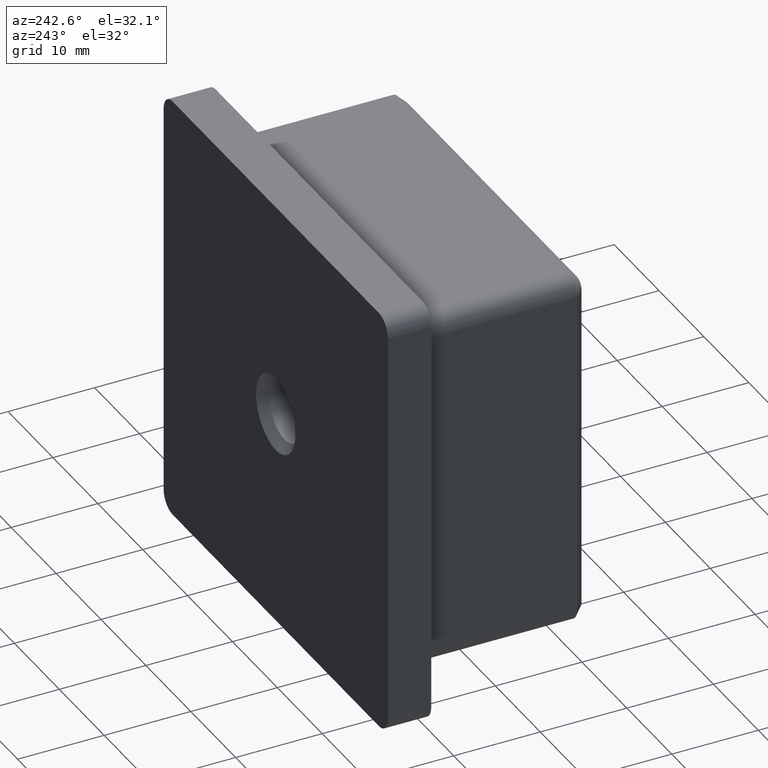
[diagram: clean part render]
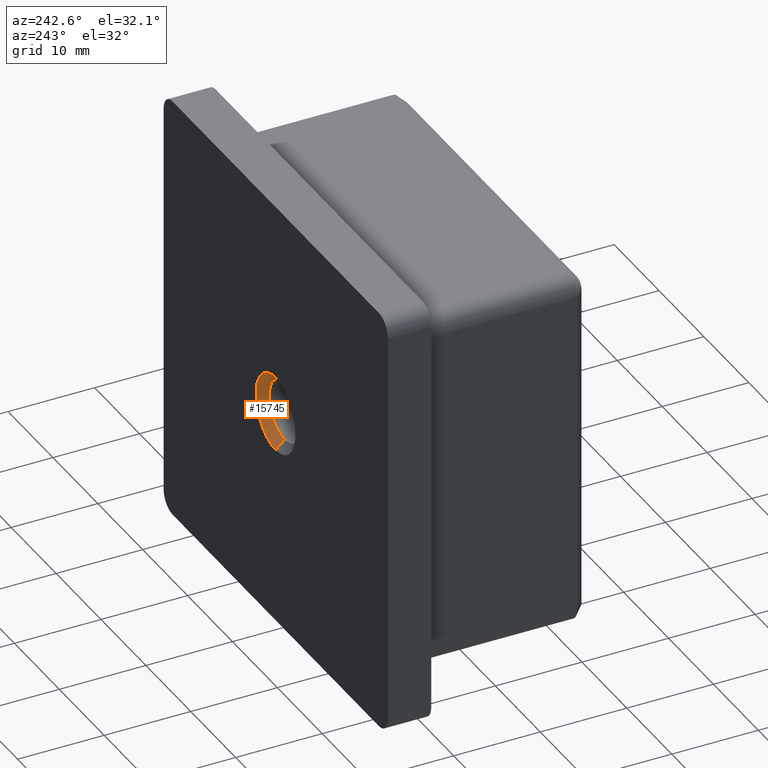
[diagram: same view with one face highlighted and labeled with its STEP entity id]
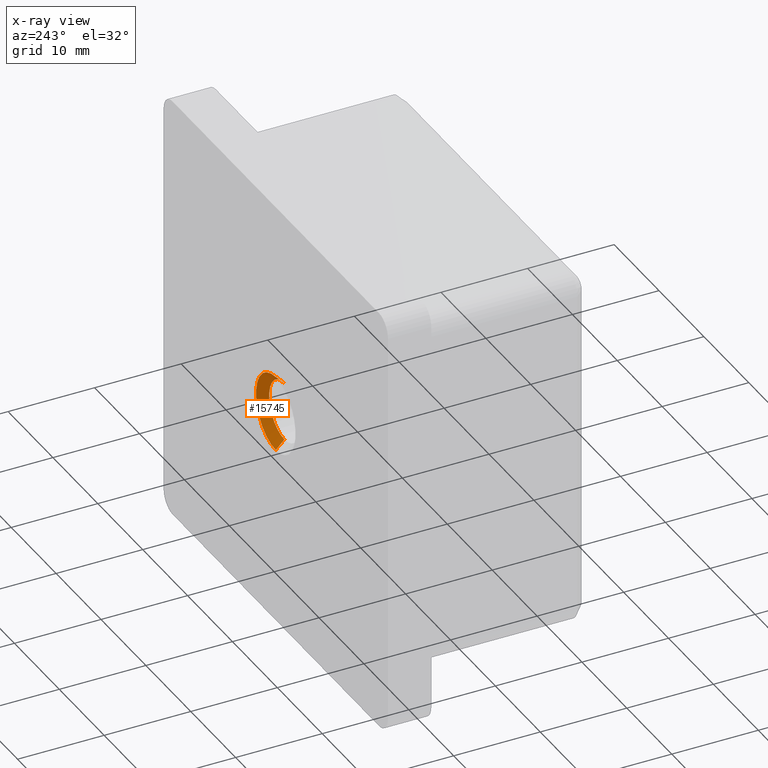
[diagram: x-ray of the same camera — body ghosted, the highlighted face saturated]
A machine part, auxiliary view. The second image highlights one B-rep face of the part: STEP entity #15745.
The next image is the same camera in x-ray: the body ghosted, the highlighted face saturated — about 0% of this face is hidden behind the body in this view.
In plain terms, the highlighted conical surface has half-angle 45 deg.
Its self-contained STEP definition (entity closure, byte-faithful):
#148 = FACE_OUTER_BOUND ( 'NONE', #13472, .T. ) ;
#737 = CARTESIAN_POINT ( 'NONE',  ( 2.449293598294707400E-016, 5.000000000000000000, 4.399999999999979000 ) ) ;
#738 = DIRECTION ( 'NONE',  ( 0.0000000000000000000, 0.0000000000000000000, 1.000000000000000000 ) ) ;
#782 = LINE ( 'NONE', #17958, #7932 ) ;
#880 = DIRECTION ( 'NONE',  ( 0.0000000000000000000, 0.7071067811865480200, 0.7071067811865470200 ) ) ;
#1010 = CARTESIAN_POINT ( 'NONE',  ( 6.613092715395703500E-016, 4.000000000000016000, 3.399999999999996400 ) ) ;
#2181 = CARTESIAN_POINT ( 'NONE',  ( 2.449293598294707400E-016, 4.000000000000016000, 0.0000000000000000000 ) ) ;
#2675 = VERTEX_POINT ( 'NONE', #18406 ) ;
#3680 = AXIS2_PLACEMENT_3D ( 'NONE', #4986, #17821, #738 ) ;
#4113 = AXIS2_PLACEMENT_3D ( 'NONE', #9190, #10614, #7715 ) ;
#4567 = VERTEX_POINT ( 'NONE', #1010 ) ;
#4921 = VERTEX_POINT ( 'NONE', #737 ) ;
#4986 = CARTESIAN_POINT ( 'NONE',  ( 2.449293598294707400E-016, 5.000000000000000900, 0.0000000000000000000 ) ) ;
#5099 = DIRECTION ( 'NONE',  ( -0.0000000000000000000, 1.000000000000000000, -0.0000000000000000000 ) ) ;
#5156 = AXIS2_PLACEMENT_3D ( 'NONE', #2181, #5099, #12116 ) ;
#5361 = CIRCLE ( 'NONE', #4113, 4.399999999999979000 ) ;
#5735 = CARTESIAN_POINT ( 'NONE',  ( 7.837739514543038200E-016, 5.000000000000000900, -4.399999999999979900 ) ) ;
#5815 = EDGE_CURVE ( 'NONE', #2675, #15014, #8465, .T. ) ;
#7715 = DIRECTION ( 'NONE',  ( 0.0000000000000000000, 0.0000000000000000000, 1.000000000000000000 ) ) ;
#7932 = VECTOR ( 'NONE', #880, 1000.000000000000000 ) ;
#8017 = VECTOR ( 'NONE', #12991, 1000.000000000000000 ) ;
#8465 = LINE ( 'NONE', #5735, #8017 ) ;
#8501 = ORIENTED_EDGE ( 'NONE', *, *, #9043, .F. ) ;
#8802 = CONICAL_SURFACE ( 'NONE', #3680, 4.399999999999979900, 0.7853981633974476100 ) ;
#8900 = CARTESIAN_POINT ( 'NONE',  ( 7.837739514543038200E-016, 5.000000000000000000, -4.399999999999979000 ) ) ;
#9043 = EDGE_CURVE ( 'NONE', #4567, #2675, #15207, .T. ) ;
#9190 = CARTESIAN_POINT ( 'NONE',  ( 2.449293598294707400E-016, 5.000000000000000000, 0.0000000000000000000 ) ) ;
#9718 = ORIENTED_EDGE ( 'NONE', *, *, #17223, .T. ) ;
#10176 = EDGE_CURVE ( 'NONE', #15014, #4921, #5361, .T. ) ;
#10614 = DIRECTION ( 'NONE',  ( -0.0000000000000000000, -1.000000000000000000, -0.0000000000000000000 ) ) ;
#12116 = DIRECTION ( 'NONE',  ( 0.0000000000000000000, 0.0000000000000000000, 1.000000000000000000 ) ) ;
#12248 = ORIENTED_EDGE ( 'NONE', *, *, #10176, .F. ) ;
#12991 = DIRECTION ( 'NONE',  ( 8.659560562354926700E-017, 0.7071067811865480200, -0.7071067811865470200 ) ) ;
#13472 = EDGE_LOOP ( 'NONE', ( #17798, #8501, #9718, #12248 ) ) ;
#15014 = VERTEX_POINT ( 'NONE', #8900 ) ;
#15207 = CIRCLE ( 'NONE', #5156, 3.399999999999996400 ) ;
#15745 = ADVANCED_FACE ( 'NONE', ( #148 ), #8802, .F. ) ;
#17223 = EDGE_CURVE ( 'NONE', #4567, #4921, #782, .T. ) ;
#17798 = ORIENTED_EDGE ( 'NONE', *, *, #5815, .F. ) ;
#17821 = DIRECTION ( 'NONE',  ( -0.0000000000000000000, 1.000000000000000000, -0.0000000000000000000 ) ) ;
#17958 = CARTESIAN_POINT ( 'NONE',  ( 2.449293598294707400E-016, 5.000000000000000900, 4.399999999999979900 ) ) ;
#18406 = CARTESIAN_POINT ( 'NONE',  ( 2.449293598294707400E-016, 4.000000000000016000, -3.399999999999996400 ) ) ;